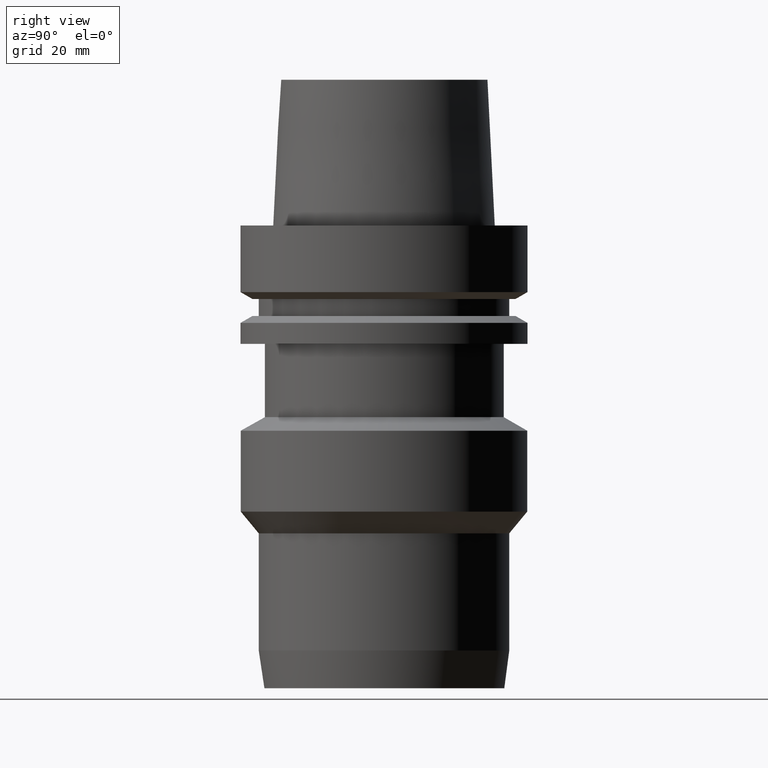
[diagram: clean part render]
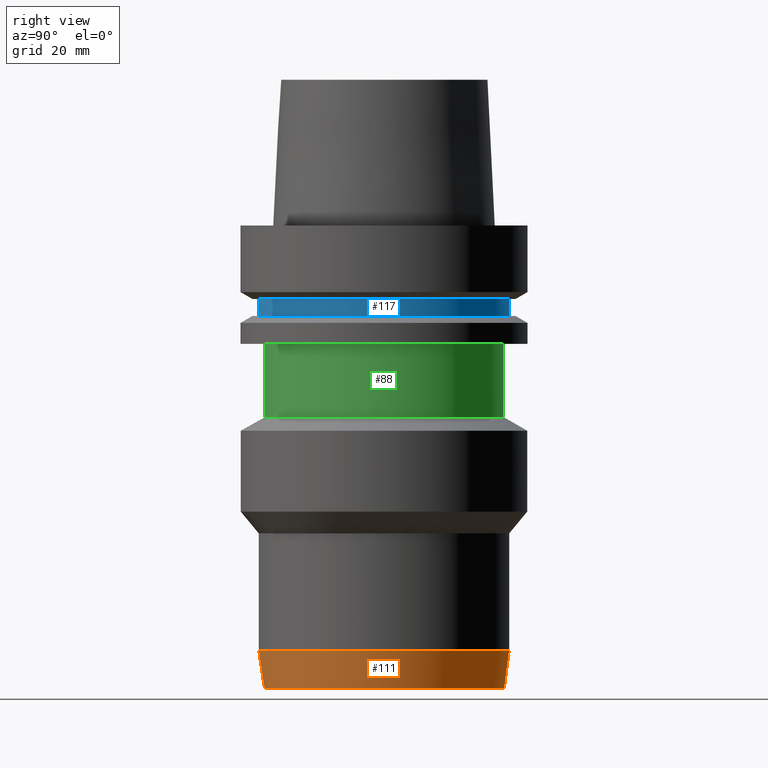
[diagram: same view with three faces highlighted in distinct colors, each labeled with its STEP entity id]
A machine part, right view with three faces highlighted in distinct colors.
Their STEP definitions:

[orange] entity #111 — the highlighted conical surface has half-angle 7.5 deg.
#90=EDGE_CURVE('Unnamed[1]',#213,#213,#214,.T.);
#92=EDGE_CURVE('Unnamed[1]',#216,#216,#217,.T.);
#111=ADVANCED_FACE('Unnamed[1]',(#245,#246),#247,.T.);
#213=VERTEX_POINT('',#373);
#214=CIRCLE('',#374,26.4085690956199);
#216=VERTEX_POINT('',#377);
#217=CIRCLE('',#378,27.5000000000029);
#245=FACE_BOUND('',#413,.T.);
#246=FACE_BOUND('',#414,.T.);
#247=CONICAL_SURFACE('',#415,26.9542845478114,0.130899693899458);
#373=CARTESIAN_POINT('',(6.22120573966869E-015,26.40856909562,-101.600000000002));
#374=AXIS2_PLACEMENT_3D('',#541,#542,#543);
#377=CARTESIAN_POINT('',(5.71357489785462E-015,27.5000000000029,-93.3097592192726));
#378=AXIS2_PLACEMENT_3D('',#544,#545,#546);
#413=EDGE_LOOP('',(#577));
#414=EDGE_LOOP('',(#578));
#415=AXIS2_PLACEMENT_3D('',#579,#580,#581);
#541=CARTESIAN_POINT('',(6.22120573966869E-015,1.24424114793374E-014,-101.600000000002));
#542=DIRECTION('',(-6.12323399573677E-017,-1.22464679914735E-016,1.0));
#543=DIRECTION('',(-1.23259516440783E-032,1.0,1.22464679914735E-016));
#544=CARTESIAN_POINT('',(5.71357489785462E-015,1.14271497957092E-014,-93.3097592192726));
#545=DIRECTION('',(-6.12323399573677E-017,-1.22464679914735E-016,1.0));
#546=DIRECTION('',(-1.23259516440783E-032,1.0,1.22464679914735E-016));
#577=ORIENTED_EDGE('',*,*,#92,.F.);
#578=ORIENTED_EDGE('',*,*,#90,.T.);
#579=CARTESIAN_POINT('',(5.96739031876166E-015,1.19347806375233E-014,-97.4548796096374));
#580=DIRECTION('',(-6.12323399573677E-017,-1.22464679914735E-016,1.0));
#581=DIRECTION('',(-1.23259516440783E-032,1.0,1.22464679914735E-016));

[blue] entity #117 — the highlighted cylindrical surface (bore or boss wall) has radius 27.5 mm, axis along (-0, -0, 1).
#117=ADVANCED_FACE('Unnamed[1]',(#255,#256),#257,.T.);
#125=EDGE_CURVE('Unnamed[1]',#269,#269,#270,.T.);
#146=EDGE_CURVE('Unnamed[1]',#301,#301,#302,.T.);
#255=FACE_BOUND('',#425,.T.);
#256=FACE_BOUND('',#426,.T.);
#257=CYLINDRICAL_SURFACE('',#427,27.4999999999994);
#269=VERTEX_POINT('',#442);
#270=CIRCLE('',#443,27.5);
#301=VERTEX_POINT('',#483);
#302=CIRCLE('',#484,27.4999999999989);
#425=EDGE_LOOP('',(#589));
#426=EDGE_LOOP('',(#590));
#427=AXIS2_PLACEMENT_3D('',#591,#592,#593);
#442=CARTESIAN_POINT('',(9.87371481812537E-016,27.5,-16.1249999999997));
#443=AXIS2_PLACEMENT_3D('',#606,#607,#608);
#483=CARTESIAN_POINT('',(1.21699275665276E-015,27.4999999999989,-19.8750000000013));
#484=AXIS2_PLACEMENT_3D('',#641,#642,#643);
#589=ORIENTED_EDGE('',*,*,#125,.F.);
#590=ORIENTED_EDGE('',*,*,#146,.T.);
#591=CARTESIAN_POINT('',(1.10218211923265E-015,2.2043642384653E-015,-18.0000000000005));
#592=DIRECTION('',(-6.12323399573677E-017,-1.22464679914735E-016,1.0));
#593=DIRECTION('',(-1.23259516440783E-032,1.0,1.22464679914735E-016));
#606=CARTESIAN_POINT('',(9.87371481812538E-016,1.97474296362508E-015,-16.1249999999997));
#607=DIRECTION('',(-6.12323399573677E-017,-1.22464679914735E-016,1.0));
#608=DIRECTION('',(-1.23259516440783E-032,1.0,1.22464679914735E-016));
#641=CARTESIAN_POINT('',(1.21699275665276E-015,2.43398551330552E-015,-19.8750000000013));
#642=DIRECTION('',(-6.12323399573677E-017,-1.22464679914735E-016,1.0));
#643=DIRECTION('',(-1.23259516440783E-032,1.0,1.22464679914735E-016));

[green] entity #88 — the highlighted cylindrical surface (bore or boss wall) has radius 26.3 mm, axis along (-0, -0, 1).
#71=EDGE_CURVE('Unnamed[1]',#183,#183,#184,.T.);
#73=EDGE_CURVE('Unnamed[1]',#186,#186,#187,.T.);
#88=ADVANCED_FACE('Unnamed[1]',(#209,#210),#211,.T.);
#183=VERTEX_POINT('',#335);
#184=CIRCLE('',#336,26.3);
#186=VERTEX_POINT('',#339);
#187=CIRCLE('',#340,26.3);
#209=FACE_BOUND('',#368,.T.);
#210=FACE_BOUND('',#369,.T.);
#211=CYLINDRICAL_SURFACE('',#370,26.3);
#335=CARTESIAN_POINT('',(2.57653440072611E-015,26.3,-42.078));
#336=AXIS2_PLACEMENT_3D('',#508,#509,#510);
#339=CARTESIAN_POINT('',(1.59204083889154E-015,26.3,-25.9999999999997));
#340=AXIS2_PLACEMENT_3D('',#511,#512,#513);
#368=EDGE_LOOP('',(#536));
#369=EDGE_LOOP('',(#537));
#370=AXIS2_PLACEMENT_3D('',#538,#539,#540);
#508=CARTESIAN_POINT('',(2.57653440072612E-015,5.15306880145223E-015,-42.078));
#509=DIRECTION('',(-6.12323399573677E-017,-1.22464679914735E-016,1.0));
#510=DIRECTION('',(-1.23259516440783E-032,1.0,1.22464679914735E-016));
#511=CARTESIAN_POINT('',(1.59204083889154E-015,3.18408167778308E-015,-25.9999999999997));
#512=DIRECTION('',(-6.12323399573677E-017,-1.22464679914735E-016,1.0));
#513=DIRECTION('',(-1.23259516440783E-032,1.0,1.22464679914735E-016));
#536=ORIENTED_EDGE('',*,*,#73,.F.);
#537=ORIENTED_EDGE('',*,*,#71,.T.);
#538=CARTESIAN_POINT('',(2.08428761980883E-015,4.16857523961765E-015,-34.0389999999998));
#539=DIRECTION('',(-6.12323399573676E-017,-1.22464679914735E-016,1.0));
#540=DIRECTION('',(-1.23259516440783E-032,1.0,1.22464679914735E-016));